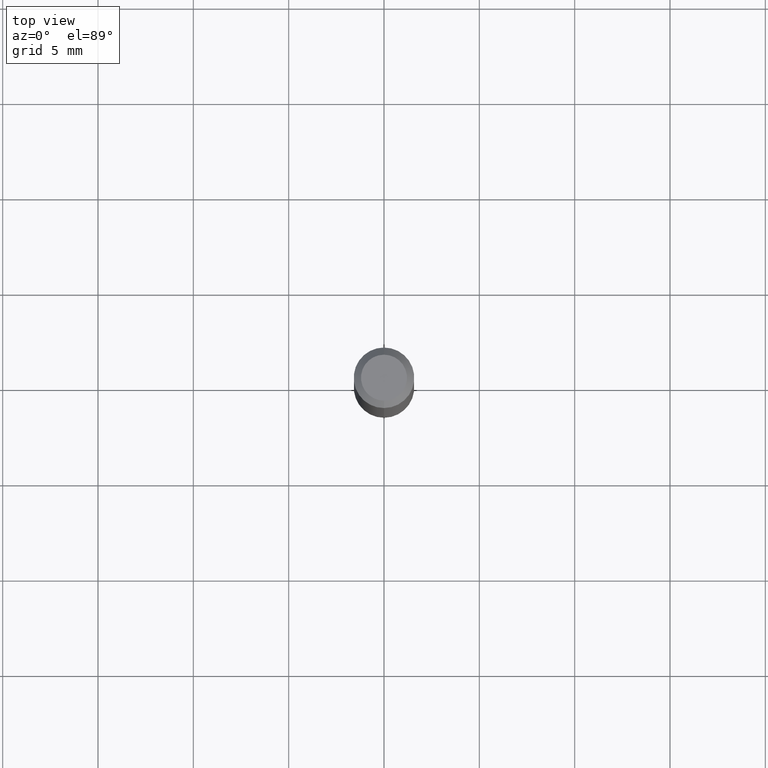
[diagram: clean part render]
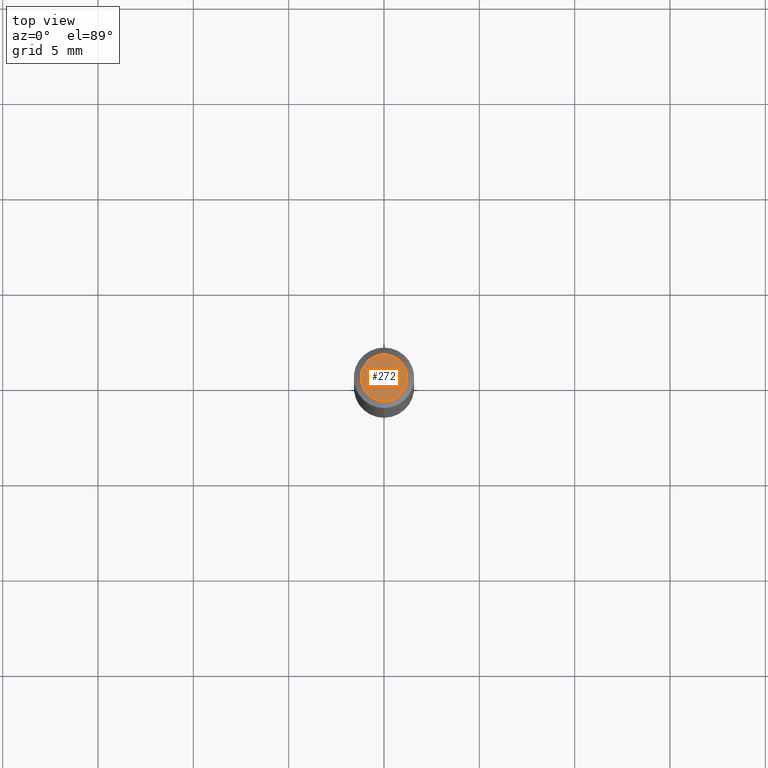
[diagram: same view with one face highlighted and labeled with its STEP entity id]
A machine part, top view. The second image highlights one B-rep face of the part: STEP entity #272.
In plain terms, the highlighted planar face has unit normal (0, -0, -1).
Its self-contained STEP definition (entity closure, byte-faithful):
#6 = FACE_OUTER_BOUND ( 'NONE', #184, .T. ) ;
#19 = ORIENTED_EDGE ( 'NONE', *, *, #502, .T. ) ;
#30 = CIRCLE ( 'NONE', #165, 0.04749999999999999362 ) ;
#92 = VERTEX_POINT ( 'NONE', #450 ) ;
#99 = PLANE ( 'NONE',  #119 ) ;
#114 = CARTESIAN_POINT ( 'NONE',  ( 7.033332737889117221E-46, -1.005754319877456614E-31, -2.878327632477791057E-17 ) ) ;
#119 = AXIS2_PLACEMENT_3D ( 'NONE', #175, #137, #259 ) ;
#137 = DIRECTION ( 'NONE',  ( 2.443548350273979562E-29, -3.494231541013484415E-15, -1.000000000000000000 ) ) ;
#151 = DIRECTION ( 'NONE',  ( -2.443548350273979842E-29, 3.494231541013484415E-15, 1.000000000000000000 ) ) ;
#156 = ORIENTED_EDGE ( 'NONE', *, *, #214, .T. ) ;
#165 = AXIS2_PLACEMENT_3D ( 'NONE', #481, #282, #370 ) ;
#175 = CARTESIAN_POINT ( 'NONE',  ( 3.316907271900976096E-16, 0.04749999999999999362, -1.803676363605294628E-16 ) ) ;
#184 = EDGE_LOOP ( 'NONE', ( #19, #156 ) ) ;
#214 = EDGE_CURVE ( 'NONE', #92, #308, #30, .T. ) ;
#259 = DIRECTION ( 'NONE',  ( 6.982962677686265922E-15, 1.000000000000000000, -3.494231541013484415E-15 ) ) ;
#272 = ADVANCED_FACE ( 'NONE', ( #6 ), #99, .F. ) ;
#282 = DIRECTION ( 'NONE',  ( -2.443548350273979842E-29, 3.494231541013484415E-15, 1.000000000000000000 ) ) ;
#290 = CARTESIAN_POINT ( 'NONE',  ( 3.840629472727447874E-16, 0.04749999999999999362, -1.947592745229183872E-16 ) ) ;
#308 = VERTEX_POINT ( 'NONE', #290 ) ;
#334 = CIRCLE ( 'NONE', #359, 0.04749999999999999362 ) ;
#359 = AXIS2_PLACEMENT_3D ( 'NONE', #114, #151, #497 ) ;
#370 = DIRECTION ( 'NONE',  ( -6.982962677686266711E-15, -1.000000000000000000, 3.494231541013484415E-15 ) ) ;
#450 = CARTESIAN_POINT ( 'NONE',  ( -3.773273898774340269E-16, -0.04749999999999999362, 1.371927218733625908E-16 ) ) ;
#481 = CARTESIAN_POINT ( 'NONE',  ( 7.033332737889117221E-46, -1.005754319877456614E-31, -2.878327632477791057E-17 ) ) ;
#497 = DIRECTION ( 'NONE',  ( -6.982962677686266711E-15, -1.000000000000000000, 3.494231541013484415E-15 ) ) ;
#502 = EDGE_CURVE ( 'NONE', #308, #92, #334, .T. ) ;